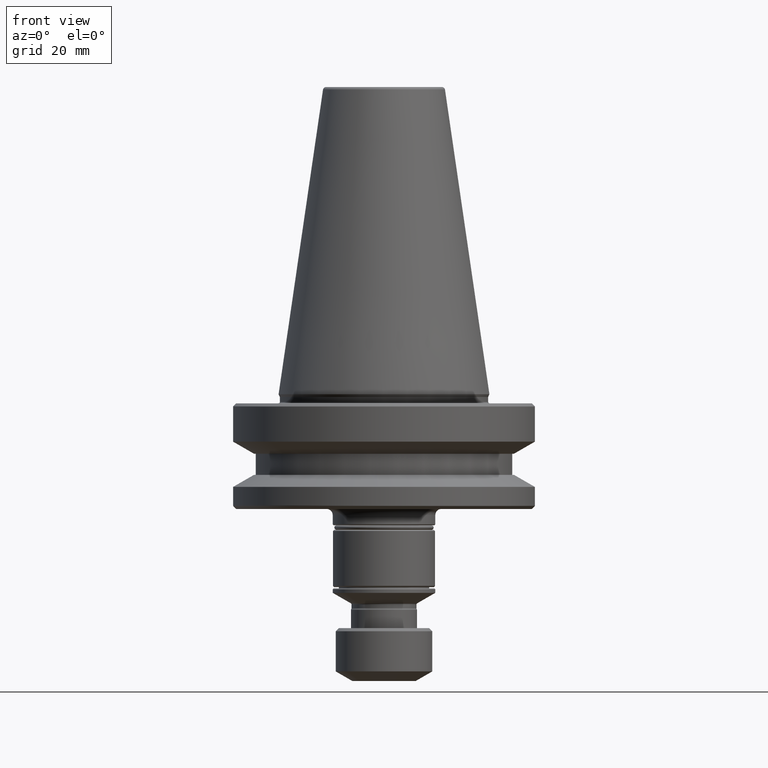
[diagram: clean part render]
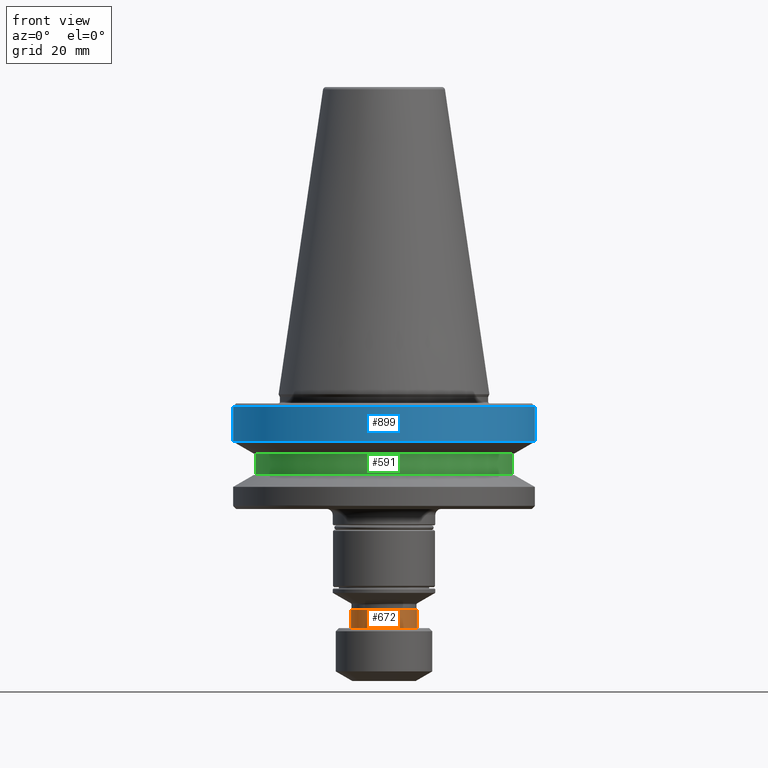
[diagram: same view with three faces highlighted in distinct colors, each labeled with its STEP entity id]
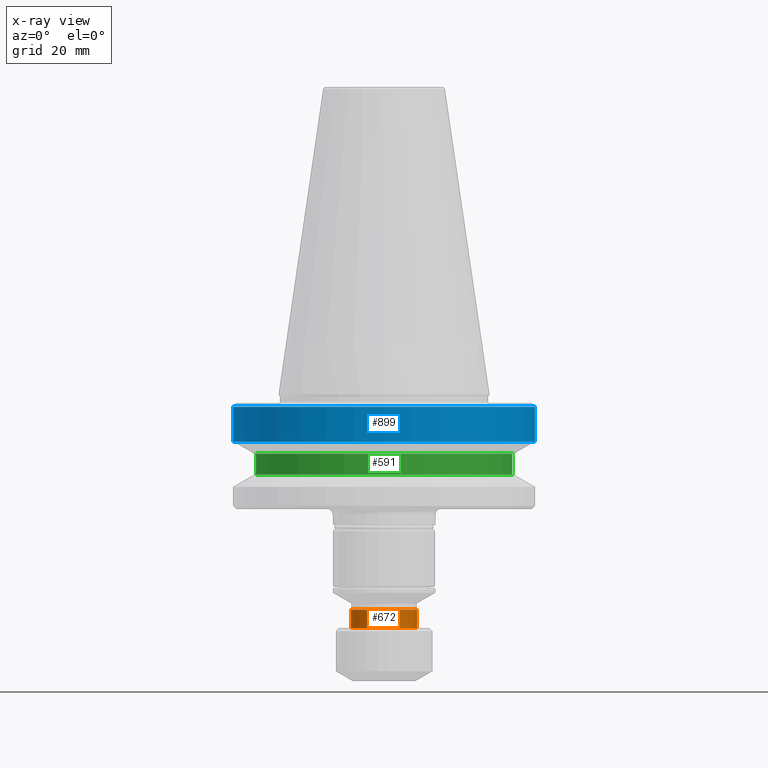
[diagram: x-ray of the same camera — body ghosted, the three highlighted faces saturated]
A machine part, front view with three faces highlighted in distinct colors.
The next image is the same camera in x-ray (body ghosted, the three faces saturated) — at least one of them is partly hidden behind the body in this view.
Their STEP definitions:

[orange] entity #672 — the highlighted cylindrical surface (edge-blend (fillet) strip) has radius 10.95 mm, axis along (-0, -0, -1).
#31 = ORIENTED_EDGE ( 'NONE', *, *, #1617, .F. ) ;
#60 = CARTESIAN_POINT ( 'NONE',  ( 10.95000000000245800, 1.340988245066672800E-015, -71.39999999999901100 ) ) ;
#115 = CARTESIAN_POINT ( 'NONE',  ( 10.95000000000311900, 1.340988245066733500E-015, -77.50000000000015600 ) ) ;
#168 = CARTESIAN_POINT ( 'NONE',  ( 0.0000000000000000000, 0.0000000000000000000, -161.5970221371647100 ) ) ;
#244 = DIRECTION ( 'NONE',  ( -0.0000000000000000000, -0.0000000000000000000, -1.000000000000000000 ) ) ;
#407 = VERTEX_POINT ( 'NONE', #948 ) ;
#641 = DIRECTION ( 'NONE',  ( -0.0000000000000000000, -0.0000000000000000000, -1.000000000000000000 ) ) ;
#646 = DIRECTION ( 'NONE',  ( -0.0000000000000000000, -0.0000000000000000000, -1.000000000000000000 ) ) ;
#655 = ORIENTED_EDGE ( 'NONE', *, *, #1857, .T. ) ;
#672 = ADVANCED_FACE ( 'NONE', ( #1210 ), #1110, .T. ) ;
#721 = VECTOR ( 'NONE', #1234, 1000.000000000000000 ) ;
#755 = ORIENTED_EDGE ( 'NONE', *, *, #1909, .F. ) ;
#791 = LINE ( 'NONE', #895, #721 ) ;
#797 = DIRECTION ( 'NONE',  ( -1.000000000000000000, 0.0000000000000000000, 0.0000000000000000000 ) ) ;
#849 = CIRCLE ( 'NONE', #1900, 10.95000000000245800 ) ;
#889 = CARTESIAN_POINT ( 'NONE',  ( 0.0000000000000000000, 0.0000000000000000000, -71.39999999999901100 ) ) ;
#895 = CARTESIAN_POINT ( 'NONE',  ( 10.95000000000278800, 1.340988245066693100E-015, -161.5970221371647100 ) ) ;
#948 = CARTESIAN_POINT ( 'NONE',  ( -10.95000000000245800, 0.0000000000000000000, -71.39999999999901100 ) ) ;
#1054 = DIRECTION ( 'NONE',  ( -1.000000000000000000, 0.0000000000000000000, 0.0000000000000000000 ) ) ;
#1110 = CYLINDRICAL_SURFACE ( 'NONE', #2142, 10.95000000000278800 ) ;
#1210 = FACE_OUTER_BOUND ( 'NONE', #2059, .T. ) ;
#1217 = CARTESIAN_POINT ( 'NONE',  ( 0.0000000000000000000, 0.0000000000000000000, -77.50000000000015600 ) ) ;
#1233 = ORIENTED_EDGE ( 'NONE', *, *, #1290, .T. ) ;
#1234 = DIRECTION ( 'NONE',  ( -0.0000000000000000000, -0.0000000000000000000, -1.000000000000000000 ) ) ;
#1277 = CIRCLE ( 'NONE', #1826, 10.95000000000311700 ) ;
#1290 = EDGE_CURVE ( 'NONE', #407, #2137, #2001, .T. ) ;
#1321 = CARTESIAN_POINT ( 'NONE',  ( -10.95000000000311700, 0.0000000000000000000, -77.50000000000015600 ) ) ;
#1398 = DIRECTION ( 'NONE',  ( -1.000000000000000000, 0.0000000000000000000, 0.0000000000000000000 ) ) ;
#1617 = EDGE_CURVE ( 'NONE', #2021, #2137, #1277, .T. ) ;
#1658 = CARTESIAN_POINT ( 'NONE',  ( -10.95000000000278800, 0.0000000000000000000, -161.5970221371647100 ) ) ;
#1780 = VERTEX_POINT ( 'NONE', #60 ) ;
#1826 = AXIS2_PLACEMENT_3D ( 'NONE', #1217, #244, #1398 ) ;
#1857 = EDGE_CURVE ( 'NONE', #1780, #407, #849, .T. ) ;
#1900 = AXIS2_PLACEMENT_3D ( 'NONE', #889, #2080, #1054 ) ;
#1909 = EDGE_CURVE ( 'NONE', #1780, #2021, #791, .T. ) ;
#1978 = VECTOR ( 'NONE', #646, 1000.000000000000000 ) ;
#2001 = LINE ( 'NONE', #1658, #1978 ) ;
#2021 = VERTEX_POINT ( 'NONE', #115 ) ;
#2059 = EDGE_LOOP ( 'NONE', ( #755, #655, #1233, #31 ) ) ;
#2080 = DIRECTION ( 'NONE',  ( -0.0000000000000000000, -0.0000000000000000000, -1.000000000000000000 ) ) ;
#2137 = VERTEX_POINT ( 'NONE', #1321 ) ;
#2142 = AXIS2_PLACEMENT_3D ( 'NONE', #168, #641, #797 ) ;

[blue] entity #899 — the highlighted cylindrical surface (partial cylindrical patch) has radius 50 mm, axis along (-0, -0, 1).
#43 = CARTESIAN_POINT ( 'NONE',  ( -50.00000000000000000, 6.123233995736766100E-015, 69.75694866325665100 ) ) ;
#54 = AXIS2_PLACEMENT_3D ( 'NONE', #1779, #435, #1953 ) ;
#207 = ORIENTED_EDGE ( 'NONE', *, *, #1605, .T. ) ;
#284 = EDGE_LOOP ( 'NONE', ( #1794, #207, #835, #2129 ) ) ;
#395 = DIRECTION ( 'NONE',  ( -0.0000000000000000000, -0.0000000000000000000, 1.000000000000000000 ) ) ;
#435 = DIRECTION ( 'NONE',  ( -0.0000000000000000000, -0.0000000000000000000, 1.000000000000000000 ) ) ;
#464 = VERTEX_POINT ( 'NONE', #995 ) ;
#545 = DIRECTION ( 'NONE',  ( -0.0000000000000000000, -0.0000000000000000000, 1.000000000000000000 ) ) ;
#645 = CYLINDRICAL_SURFACE ( 'NONE', #54, 50.00000000000000000 ) ;
#681 = FACE_OUTER_BOUND ( 'NONE', #284, .T. ) ;
#741 = CARTESIAN_POINT ( 'NONE',  ( -50.00000000000000000, 6.123233995736766100E-015, -4.165685424949244500 ) ) ;
#835 = ORIENTED_EDGE ( 'NONE', *, *, #1745, .T. ) ;
#873 = CARTESIAN_POINT ( 'NONE',  ( -50.00000000000000000, 6.123233995736766100E-015, -15.70022000322676600 ) ) ;
#899 = ADVANCED_FACE ( 'NONE', ( #681 ), #645, .T. ) ;
#953 = CIRCLE ( 'NONE', #971, 50.00000000000000000 ) ;
#971 = AXIS2_PLACEMENT_3D ( 'NONE', #1544, #545, #1717 ) ;
#995 = CARTESIAN_POINT ( 'NONE',  ( 50.00000000000000000, 0.0000000000000000000, -4.165685424949244500 ) ) ;
#1021 = DIRECTION ( 'NONE',  ( -0.0000000000000000000, -0.0000000000000000000, 1.000000000000000000 ) ) ;
#1060 = VECTOR ( 'NONE', #1021, 1000.000000000000000 ) ;
#1065 = LINE ( 'NONE', #2039, #1060 ) ;
#1094 = VERTEX_POINT ( 'NONE', #741 ) ;
#1099 = VERTEX_POINT ( 'NONE', #1760 ) ;
#1114 = VECTOR ( 'NONE', #1352, 1000.000000000000000 ) ;
#1174 = LINE ( 'NONE', #43, #1114 ) ;
#1333 = CIRCLE ( 'NONE', #1594, 50.00000000000000000 ) ;
#1352 = DIRECTION ( 'NONE',  ( -0.0000000000000000000, -0.0000000000000000000, 1.000000000000000000 ) ) ;
#1390 = CARTESIAN_POINT ( 'NONE',  ( 0.0000000000000000000, 0.0000000000000000000, -15.70022000322676600 ) ) ;
#1544 = CARTESIAN_POINT ( 'NONE',  ( 0.0000000000000000000, 0.0000000000000000000, -4.165685424949244500 ) ) ;
#1558 = DIRECTION ( 'NONE',  ( 1.000000000000000000, 0.0000000000000000000, 0.0000000000000000000 ) ) ;
#1594 = AXIS2_PLACEMENT_3D ( 'NONE', #1390, #395, #1558 ) ;
#1603 = VERTEX_POINT ( 'NONE', #873 ) ;
#1605 = EDGE_CURVE ( 'NONE', #1603, #1099, #1333, .T. ) ;
#1717 = DIRECTION ( 'NONE',  ( 1.000000000000000000, 0.0000000000000000000, 0.0000000000000000000 ) ) ;
#1718 = EDGE_CURVE ( 'NONE', #1603, #1094, #1174, .T. ) ;
#1745 = EDGE_CURVE ( 'NONE', #1099, #464, #1065, .T. ) ;
#1760 = CARTESIAN_POINT ( 'NONE',  ( 50.00000000000000000, 0.0000000000000000000, -15.70022000322676600 ) ) ;
#1769 = EDGE_CURVE ( 'NONE', #1094, #464, #953, .T. ) ;
#1779 = CARTESIAN_POINT ( 'NONE',  ( 0.0000000000000000000, 0.0000000000000000000, 69.75694866325665100 ) ) ;
#1794 = ORIENTED_EDGE ( 'NONE', *, *, #1718, .F. ) ;
#1953 = DIRECTION ( 'NONE',  ( 1.000000000000000000, 0.0000000000000000000, 0.0000000000000000000 ) ) ;
#2039 = CARTESIAN_POINT ( 'NONE',  ( 50.00000000000000000, 0.0000000000000000000, 69.75694866325665100 ) ) ;
#2129 = ORIENTED_EDGE ( 'NONE', *, *, #1769, .F. ) ;

[green] entity #591 — the highlighted cylindrical surface (partial cylindrical patch) has radius 42.5 mm, axis along (-0, -0, 1).
#52 = VERTEX_POINT ( 'NONE', #1863 ) ;
#83 = DIRECTION ( 'NONE',  ( -0.0000000000000000000, -0.0000000000000000000, 1.000000000000000000 ) ) ;
#100 = CARTESIAN_POINT ( 'NONE',  ( 42.50000000000000000, 0.0000000000000000000, -26.70000000000000300 ) ) ;
#145 = CIRCLE ( 'NONE', #1961, 42.50000000000000000 ) ;
#233 = ORIENTED_EDGE ( 'NONE', *, *, #291, .F. ) ;
#288 = CARTESIAN_POINT ( 'NONE',  ( 42.50000000000000000, 0.0000000000000000000, 69.75694866325665100 ) ) ;
#291 = EDGE_CURVE ( 'NONE', #52, #1640, #1890, .T. ) ;
#348 = DIRECTION ( 'NONE',  ( -0.0000000000000000000, -0.0000000000000000000, 1.000000000000000000 ) ) ;
#366 = EDGE_LOOP ( 'NONE', ( #233, #861, #2158, #611 ) ) ;
#410 = VERTEX_POINT ( 'NONE', #100 ) ;
#579 = EDGE_CURVE ( 'NONE', #410, #1804, #1409, .T. ) ;
#591 = ADVANCED_FACE ( 'NONE', ( #1380 ), #1322, .T. ) ;
#611 = ORIENTED_EDGE ( 'NONE', *, *, #1373, .F. ) ;
#619 = DIRECTION ( 'NONE',  ( 1.000000000000000000, 0.0000000000000000000, 0.0000000000000000000 ) ) ;
#725 = AXIS2_PLACEMENT_3D ( 'NONE', #1055, #83, #1223 ) ;
#861 = ORIENTED_EDGE ( 'NONE', *, *, #1142, .T. ) ;
#1055 = CARTESIAN_POINT ( 'NONE',  ( 0.0000000000000000000, 0.0000000000000000000, -19.69999999999999600 ) ) ;
#1102 = CARTESIAN_POINT ( 'NONE',  ( 0.0000000000000000000, 0.0000000000000000000, 69.75694866325665100 ) ) ;
#1142 = EDGE_CURVE ( 'NONE', #52, #410, #145, .T. ) ;
#1223 = DIRECTION ( 'NONE',  ( 1.000000000000000000, 0.0000000000000000000, 0.0000000000000000000 ) ) ;
#1322 = CYLINDRICAL_SURFACE ( 'NONE', #1346, 42.50000000000000000 ) ;
#1327 = CARTESIAN_POINT ( 'NONE',  ( 0.0000000000000000000, 0.0000000000000000000, -26.70000000000000300 ) ) ;
#1346 = AXIS2_PLACEMENT_3D ( 'NONE', #1102, #1619, #619 ) ;
#1373 = EDGE_CURVE ( 'NONE', #1640, #1804, #1899, .T. ) ;
#1379 = CARTESIAN_POINT ( 'NONE',  ( 42.50000000000000000, 0.0000000000000000000, -19.69999999999999600 ) ) ;
#1380 = FACE_OUTER_BOUND ( 'NONE', #366, .T. ) ;
#1383 = VECTOR ( 'NONE', #1453, 1000.000000000000000 ) ;
#1409 = LINE ( 'NONE', #288, #1383 ) ;
#1453 = DIRECTION ( 'NONE',  ( -0.0000000000000000000, -0.0000000000000000000, 1.000000000000000000 ) ) ;
#1508 = DIRECTION ( 'NONE',  ( 1.000000000000000000, 0.0000000000000000000, 0.0000000000000000000 ) ) ;
#1514 = CARTESIAN_POINT ( 'NONE',  ( -42.50000000000000000, 5.204748896376250900E-015, -19.69999999999999600 ) ) ;
#1559 = DIRECTION ( 'NONE',  ( -0.0000000000000000000, -0.0000000000000000000, 1.000000000000000000 ) ) ;
#1619 = DIRECTION ( 'NONE',  ( -0.0000000000000000000, -0.0000000000000000000, 1.000000000000000000 ) ) ;
#1640 = VERTEX_POINT ( 'NONE', #1514 ) ;
#1722 = CARTESIAN_POINT ( 'NONE',  ( -42.50000000000000000, 5.204748896376250900E-015, 69.75694866325665100 ) ) ;
#1804 = VERTEX_POINT ( 'NONE', #1379 ) ;
#1863 = CARTESIAN_POINT ( 'NONE',  ( -42.50000000000000000, 5.204748896376250900E-015, -26.70000000000000300 ) ) ;
#1871 = VECTOR ( 'NONE', #1559, 1000.000000000000000 ) ;
#1890 = LINE ( 'NONE', #1722, #1871 ) ;
#1899 = CIRCLE ( 'NONE', #725, 42.50000000000000000 ) ;
#1961 = AXIS2_PLACEMENT_3D ( 'NONE', #1327, #348, #1508 ) ;
#2158 = ORIENTED_EDGE ( 'NONE', *, *, #579, .T. ) ;